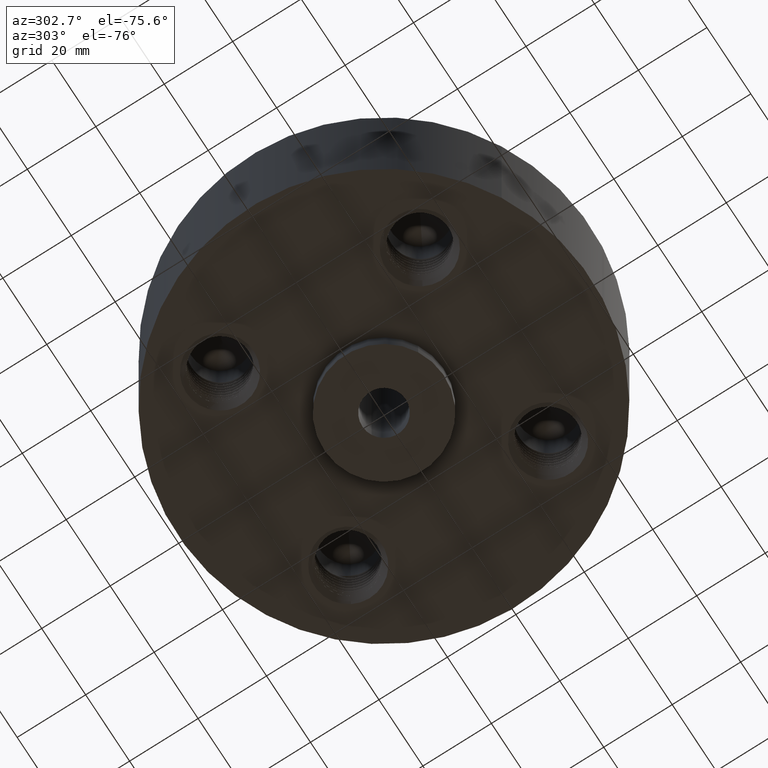
[diagram: clean part render]
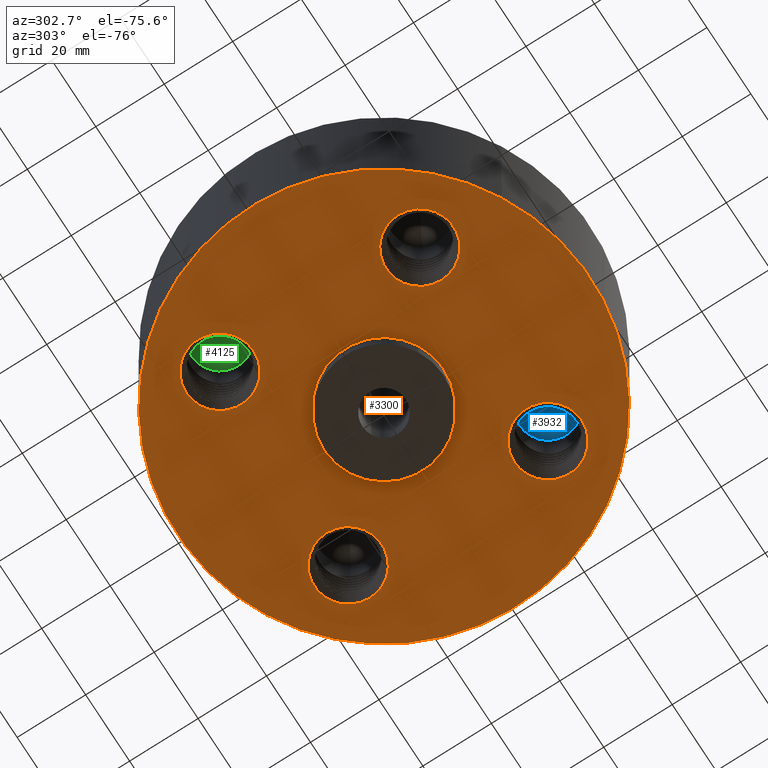
[diagram: same view with three faces highlighted in distinct colors, each labeled with its STEP entity id]
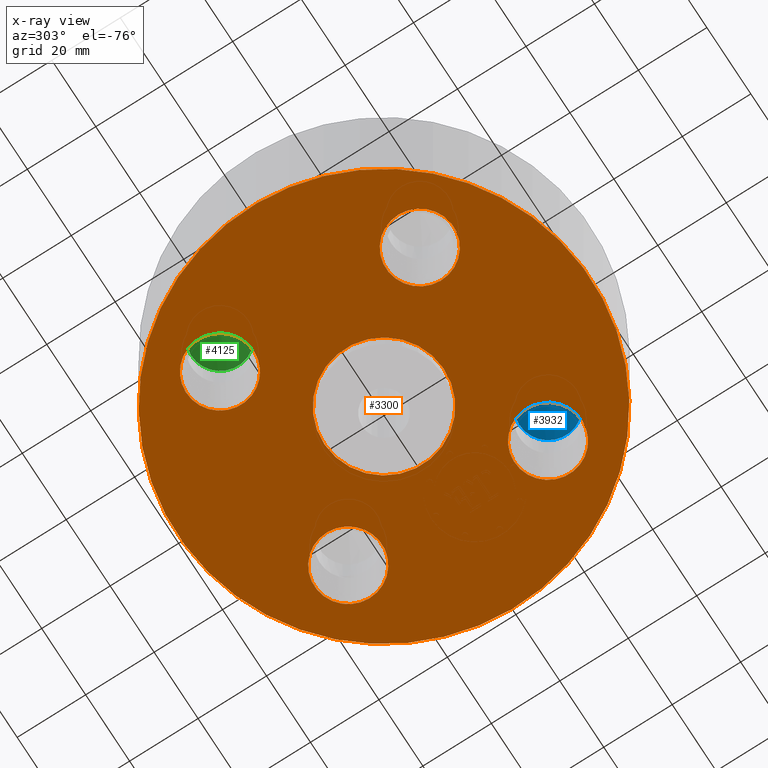
[diagram: x-ray of the same camera — body ghosted, the three highlighted faces saturated]
A machine part, auxiliary view with three faces highlighted in distinct colors.
The next image is the same camera in x-ray (body ghosted, the three faces saturated) — at least one of them is partly hidden behind the body in this view.
Their STEP definitions:

[orange] entity #3300 — the highlighted planar face has unit normal (0, 0, -1).
#3124=AXIS2_PLACEMENT_3D('Circle Axis2P3D',#3122,#3123,$) ;
#3190=AXIS2_PLACEMENT_3D('Circle Axis2P3D',#3188,#3189,$) ;
#3204=AXIS2_PLACEMENT_3D('Plane Axis2P3D',#3201,#3202,#3203) ;
#3208=AXIS2_PLACEMENT_3D('Circle Axis2P3D',#3206,#3207,$) ;
#3217=AXIS2_PLACEMENT_3D('Circle Axis2P3D',#3215,#3216,$) ;
#3230=AXIS2_PLACEMENT_3D('Circle Axis2P3D',#3228,#3229,$) ;
#3239=AXIS2_PLACEMENT_3D('Circle Axis2P3D',#3237,#3238,$) ;
#3248=AXIS2_PLACEMENT_3D('Circle Axis2P3D',#3246,#3247,$) ;
#3257=AXIS2_PLACEMENT_3D('Circle Axis2P3D',#3255,#3256,$) ;
#3266=AXIS2_PLACEMENT_3D('Circle Axis2P3D',#3264,#3265,$) ;
#3275=AXIS2_PLACEMENT_3D('Circle Axis2P3D',#3273,#3274,$) ;
#3284=AXIS2_PLACEMENT_3D('Circle Axis2P3D',#3282,#3283,$) ;
#3293=AXIS2_PLACEMENT_3D('Circle Axis2P3D',#3291,#3292,$) ;
#3119=CARTESIAN_POINT('Vertex',(1.48968219083,1.33513754224,8.74191357973E-018)) ;
#3122=CARTESIAN_POINT('Axis2P3D Location',(1.14904851943,1.14904851943,8.74191357973E-018)) ;
#3126=CARTESIAN_POINT('Vertex',(0.808414848034,0.962959496623,8.74191357973E-018)) ;
#3188=CARTESIAN_POINT('Axis2P3D Location',(1.14904851943,1.14904851943,8.74191357973E-018)) ;
#3201=CARTESIAN_POINT('Axis2P3D Location',(0.,2.37500000001,0.)) ;
#3206=CARTESIAN_POINT('Axis2P3D Location',(0.,0.,0.)) ;
#3210=CARTESIAN_POINT('Vertex',(-1.13863565419,-2.0842585845,-3.65062311089E-014)) ;
#3212=CARTESIAN_POINT('Vertex',(1.13863565419,2.0842585845,-3.65062311089E-014)) ;
#3215=CARTESIAN_POINT('Axis2P3D Location',(0.,0.,0.)) ;
#3228=CARTESIAN_POINT('Axis2P3D Location',(0.,0.,0.)) ;
#3232=CARTESIAN_POINT('Vertex',(0.330803621638,0.605531967707,-2.71348997515E-014)) ;
#3234=CARTESIAN_POINT('Vertex',(-0.330803621638,-0.605531967707,-2.71348997515E-014)) ;
#3237=CARTESIAN_POINT('Axis2P3D Location',(0.,0.,0.)) ;
#3246=CARTESIAN_POINT('Axis2P3D Location',(1.14904851943,-1.14904851943,0.)) ;
#3250=CARTESIAN_POINT('Vertex',(1.33513754224,-1.48968219083,0.)) ;
#3252=CARTESIAN_POINT('Vertex',(0.962959496623,-0.808414848034,8.74191357973E-018)) ;
#3255=CARTESIAN_POINT('Axis2P3D Location',(1.14904851943,-1.14904851943,0.)) ;
#3264=CARTESIAN_POINT('Axis2P3D Location',(-1.14904851943,-1.14904851943,0.)) ;
#3268=CARTESIAN_POINT('Vertex',(-1.48968219083,-1.33513754224,0.)) ;
#3270=CARTESIAN_POINT('Vertex',(-0.808414848034,-0.962959496623,-8.74191357973E-018)) ;
#3273=CARTESIAN_POINT('Axis2P3D Location',(-1.14904851943,-1.14904851943,0.)) ;
#3282=CARTESIAN_POINT('Axis2P3D Location',(-1.14904851943,1.14904851943,0.)) ;
#3286=CARTESIAN_POINT('Vertex',(-1.33513754224,1.48968219083,0.)) ;
#3288=CARTESIAN_POINT('Vertex',(-0.962959496623,0.808414848034,8.74191357973E-018)) ;
#3291=CARTESIAN_POINT('Axis2P3D Location',(-1.14904851943,1.14904851943,0.)) ;
#3123=DIRECTION('Axis2P3D Direction',(0.,0.,-0.0393700787402)) ;
#3189=DIRECTION('Axis2P3D Direction',(0.,0.,-0.0393700787402)) ;
#3202=DIRECTION('Axis2P3D Direction',(0.,0.,-0.0393700787402)) ;
#3203=DIRECTION('Axis2P3D XDirection',(0.0393700787402,0.,0.)) ;
#3207=DIRECTION('Axis2P3D Direction',(0.,0.,-0.0393700787402)) ;
#3216=DIRECTION('Axis2P3D Direction',(0.,0.,-0.0393700787402)) ;
#3229=DIRECTION('Axis2P3D Direction',(0.,0.,-0.0393700787402)) ;
#3238=DIRECTION('Axis2P3D Direction',(0.,0.,-0.0393700787402)) ;
#3247=DIRECTION('Axis2P3D Direction',(0.,0.,-0.0393700787402)) ;
#3256=DIRECTION('Axis2P3D Direction',(0.,0.,-0.0393700787402)) ;
#3265=DIRECTION('Axis2P3D Direction',(0.,0.,-0.0393700787402)) ;
#3274=DIRECTION('Axis2P3D Direction',(0.,0.,-0.0393700787402)) ;
#3283=DIRECTION('Axis2P3D Direction',(0.,0.,-0.0393700787402)) ;
#3292=DIRECTION('Axis2P3D Direction',(0.,0.,-0.0393700787402)) ;
#3221=ORIENTED_EDGE('',*,*,#3214,.T.) ;
#3222=ORIENTED_EDGE('',*,*,#3219,.T.) ;
#3225=ORIENTED_EDGE('',*,*,#3192,.F.) ;
#3226=ORIENTED_EDGE('',*,*,#3128,.F.) ;
#3243=ORIENTED_EDGE('',*,*,#3236,.F.) ;
#3244=ORIENTED_EDGE('',*,*,#3241,.F.) ;
#3261=ORIENTED_EDGE('',*,*,#3254,.F.) ;
#3262=ORIENTED_EDGE('',*,*,#3259,.F.) ;
#3279=ORIENTED_EDGE('',*,*,#3272,.F.) ;
#3280=ORIENTED_EDGE('',*,*,#3277,.F.) ;
#3297=ORIENTED_EDGE('',*,*,#3290,.F.) ;
#3298=ORIENTED_EDGE('',*,*,#3295,.F.) ;
#3227=FACE_BOUND('',#3224,.T.) ;
#3245=FACE_BOUND('',#3242,.T.) ;
#3263=FACE_BOUND('',#3260,.T.) ;
#3281=FACE_BOUND('',#3278,.T.) ;
#3299=FACE_BOUND('',#3296,.T.) ;
#3300=ADVANCED_FACE('PartBody',(#3223,#3227,#3245,#3263,#3281,#3299),#3205,.T.) ;
#3125=CIRCLE('generated circle',#3124,0.388150000002) ;
#3191=CIRCLE('generated circle',#3190,0.388150000002) ;
#3209=CIRCLE('generated circle',#3208,2.37500000001) ;
#3218=CIRCLE('generated circle',#3217,2.37500000001) ;
#3231=CIRCLE('generated circle',#3230,0.690000000003) ;
#3240=CIRCLE('generated circle',#3239,0.690000000003) ;
#3249=CIRCLE('generated circle',#3248,0.388150000002) ;
#3258=CIRCLE('generated circle',#3257,0.388150000002) ;
#3267=CIRCLE('generated circle',#3266,0.388150000002) ;
#3276=CIRCLE('generated circle',#3275,0.388150000002) ;
#3285=CIRCLE('generated circle',#3284,0.388150000002) ;
#3294=CIRCLE('generated circle',#3293,0.388150000002) ;
#3128=EDGE_CURVE('',#3120,#3127,#3125,.T.) ;
#3192=EDGE_CURVE('',#3127,#3120,#3191,.T.) ;
#3214=EDGE_CURVE('',#3211,#3213,#3209,.T.) ;
#3219=EDGE_CURVE('',#3213,#3211,#3218,.T.) ;
#3236=EDGE_CURVE('',#3233,#3235,#3231,.T.) ;
#3241=EDGE_CURVE('',#3235,#3233,#3240,.T.) ;
#3254=EDGE_CURVE('',#3251,#3253,#3249,.T.) ;
#3259=EDGE_CURVE('',#3253,#3251,#3258,.T.) ;
#3272=EDGE_CURVE('',#3269,#3271,#3267,.T.) ;
#3277=EDGE_CURVE('',#3271,#3269,#3276,.T.) ;
#3290=EDGE_CURVE('',#3287,#3289,#3285,.T.) ;
#3295=EDGE_CURVE('',#3289,#3287,#3294,.T.) ;
#3220=EDGE_LOOP('',(#3221,#3222)) ;
#3224=EDGE_LOOP('',(#3225,#3226)) ;
#3242=EDGE_LOOP('',(#3243,#3244)) ;
#3260=EDGE_LOOP('',(#3261,#3262)) ;
#3278=EDGE_LOOP('',(#3279,#3280)) ;
#3296=EDGE_LOOP('',(#3297,#3298)) ;
#3223=FACE_OUTER_BOUND('',#3220,.T.) ;
#3205=PLANE('',#3204) ;
#3120=VERTEX_POINT('',#3119) ;
#3127=VERTEX_POINT('',#3126) ;
#3211=VERTEX_POINT('',#3210) ;
#3213=VERTEX_POINT('',#3212) ;
#3233=VERTEX_POINT('',#3232) ;
#3235=VERTEX_POINT('',#3234) ;
#3251=VERTEX_POINT('',#3250) ;
#3253=VERTEX_POINT('',#3252) ;
#3269=VERTEX_POINT('',#3268) ;
#3271=VERTEX_POINT('',#3270) ;
#3287=VERTEX_POINT('',#3286) ;
#3289=VERTEX_POINT('',#3288) ;

[blue] entity #3932 — the highlighted conical surface has half-angle 60 deg.
#3893=AXIS2_PLACEMENT_3D('Cone Axis2P3D',#3890,#3891,#3892) ;
#3924=AXIS2_PLACEMENT_3D('Circle Axis2P3D',#3922,#3923,$) ;
#3890=CARTESIAN_POINT('Axis2P3D Location',(1.14904851943,-1.14904851943,1.49945749084)) ;
#3895=CARTESIAN_POINT('Line Origine',(1.22771026468,-1.29303787828,1.40472874542)) ;
#3899=CARTESIAN_POINT('Vertex',(1.14904851943,-1.14904851943,1.49945749084)) ;
#3901=CARTESIAN_POINT('Vertex',(1.30637200993,-1.43702723712,1.31000000001)) ;
#3908=CARTESIAN_POINT('Vertex',(0.991725028939,-0.861069801747,1.31000000001)) ;
#3911=CARTESIAN_POINT('Line Origine',(1.07038677419,-1.00505916059,1.40472874542)) ;
#3922=CARTESIAN_POINT('Axis2P3D Location',(1.14904851943,-1.14904851943,1.31000000001)) ;
#3891=DIRECTION('Axis2P3D Direction',(-0.,-0.,-0.0393700787402)) ;
#3892=DIRECTION('Axis2P3D XDirection',(-0.0188750212049,0.0345504945626,0.)) ;
#3896=DIRECTION('Vector Direction',(0.0163462478604,-0.0299216060045,-0.0196850393701)) ;
#3912=DIRECTION('Vector Direction',(-0.0163462478604,0.0299216060045,-0.0196850393701)) ;
#3923=DIRECTION('Axis2P3D Direction',(0.,0.,-0.0393700787402)) ;
#3897=VECTOR('Line Direction',#3896,0.0393700787402) ;
#3913=VECTOR('Line Direction',#3912,0.0393700787402) ;
#3928=ORIENTED_EDGE('',*,*,#3915,.T.) ;
#3929=ORIENTED_EDGE('',*,*,#3926,.F.) ;
#3930=ORIENTED_EDGE('',*,*,#3903,.F.) ;
#3932=ADVANCED_FACE('PartBody',(#3931),#3894,.F.) ;
#3925=CIRCLE('generated circle',#3924,0.328150000001) ;
#3894=CONICAL_SURFACE('Cone',#3893,0.,1.0471975512) ;
#3903=EDGE_CURVE('',#3900,#3902,#3898,.T.) ;
#3915=EDGE_CURVE('',#3900,#3909,#3914,.T.) ;
#3926=EDGE_CURVE('',#3902,#3909,#3925,.F.) ;
#3927=EDGE_LOOP('',(#3928,#3929,#3930)) ;
#3931=FACE_OUTER_BOUND('',#3927,.T.) ;
#3898=LINE('Line',#3895,#3897) ;
#3914=LINE('Line',#3911,#3913) ;
#3900=VERTEX_POINT('',#3899) ;
#3902=VERTEX_POINT('',#3901) ;
#3909=VERTEX_POINT('',#3908) ;

[green] entity #4125 — the highlighted conical surface has half-angle 60 deg.
#4097=AXIS2_PLACEMENT_3D('Cone Axis2P3D',#4094,#4095,#4096) ;
#4110=AXIS2_PLACEMENT_3D('Circle Axis2P3D',#4108,#4109,$) ;
#4094=CARTESIAN_POINT('Axis2P3D Location',(-1.14904851943,1.14904851943,1.49945749084)) ;
#4099=CARTESIAN_POINT('Line Origine',(-1.22771026468,1.29303787828,1.40472874542)) ;
#4103=CARTESIAN_POINT('Vertex',(-1.14904851943,1.14904851943,1.49945749084)) ;
#4105=CARTESIAN_POINT('Vertex',(-1.30637200993,1.43702723712,1.31000000001)) ;
#4108=CARTESIAN_POINT('Axis2P3D Location',(-1.14904851943,1.14904851943,1.31000000001)) ;
#4112=CARTESIAN_POINT('Vertex',(-0.991725028939,0.861069801747,1.31000000001)) ;
#4115=CARTESIAN_POINT('Line Origine',(-1.07038677419,1.00505916059,1.40472874542)) ;
#4095=DIRECTION('Axis2P3D Direction',(-0.,-0.,-0.0393700787402)) ;
#4096=DIRECTION('Axis2P3D XDirection',(0.0188750212049,-0.0345504945626,0.)) ;
#4100=DIRECTION('Vector Direction',(-0.0163462478604,0.0299216060045,-0.0196850393701)) ;
#4109=DIRECTION('Axis2P3D Direction',(-0.,0.,-0.0393700787402)) ;
#4116=DIRECTION('Vector Direction',(0.0163462478604,-0.0299216060045,-0.0196850393701)) ;
#4101=VECTOR('Line Direction',#4100,0.0393700787402) ;
#4117=VECTOR('Line Direction',#4116,0.0393700787402) ;
#4121=ORIENTED_EDGE('',*,*,#4107,.T.) ;
#4122=ORIENTED_EDGE('',*,*,#4114,.F.) ;
#4123=ORIENTED_EDGE('',*,*,#4119,.F.) ;
#4125=ADVANCED_FACE('PartBody',(#4124),#4098,.F.) ;
#4111=CIRCLE('generated circle',#4110,0.328150000001) ;
#4098=CONICAL_SURFACE('Cone',#4097,0.,1.0471975512) ;
#4107=EDGE_CURVE('',#4104,#4106,#4102,.T.) ;
#4114=EDGE_CURVE('',#4113,#4106,#4111,.F.) ;
#4119=EDGE_CURVE('',#4104,#4113,#4118,.T.) ;
#4120=EDGE_LOOP('',(#4121,#4122,#4123)) ;
#4124=FACE_OUTER_BOUND('',#4120,.T.) ;
#4102=LINE('Line',#4099,#4101) ;
#4118=LINE('Line',#4115,#4117) ;
#4104=VERTEX_POINT('',#4103) ;
#4106=VERTEX_POINT('',#4105) ;
#4113=VERTEX_POINT('',#4112) ;